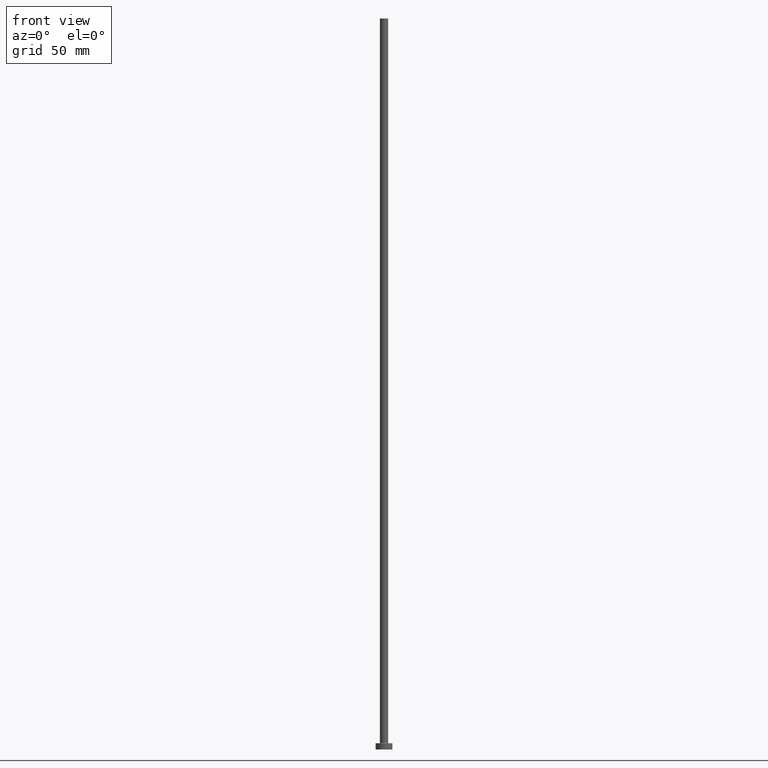
[diagram: clean part render]
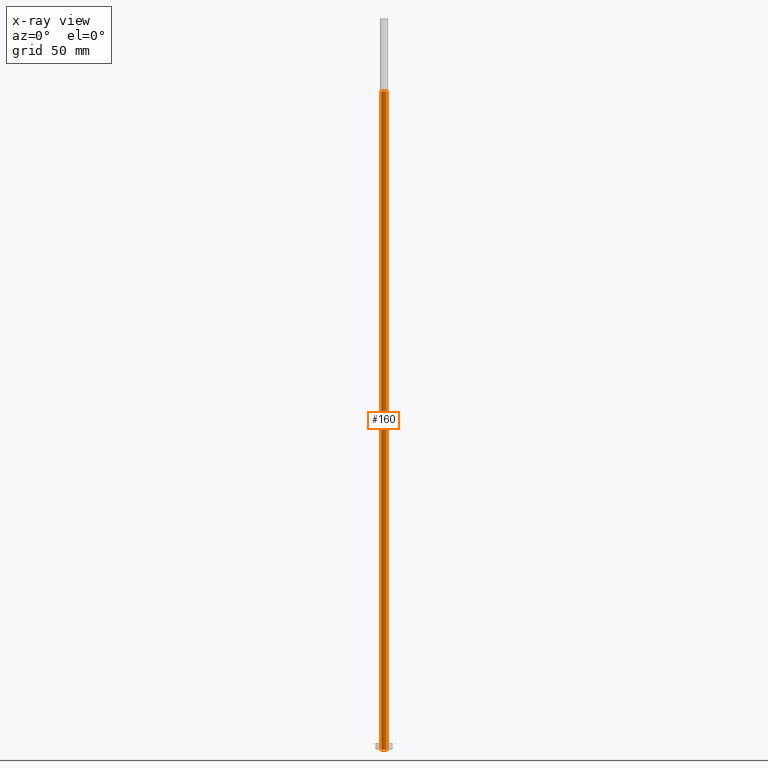
[diagram: x-ray — body ghosted, one internal face saturated and labeled with its STEP entity id]
A machine part, front view, then the same camera in x-ray: the body is ghosted and one INTERNAL B-rep face — a face not visible from any outside direction — is saturated and labeled: STEP entity #160.
In plain terms, the highlighted cylindrical surface (edge-blend (fillet) strip) has radius 1.25 mm, axis along (0, 0, -1).
Its self-contained STEP definition (entity closure, byte-faithful):
#1 = CARTESIAN_POINT ( 'NONE',  ( 1.250000000000000000, 1.530808498934191571E-16, 0.000000000000000000 ) ) ;
#7 = EDGE_LOOP ( 'NONE', ( #166, #453, #219, #256 ) ) ;
#27 = CARTESIAN_POINT ( 'NONE',  ( -1.250000000000000000, 0.000000000000000000, 318.5355339059327093 ) ) ;
#28 = CARTESIAN_POINT ( 'NONE',  ( 0.000000000000000000, 0.000000000000000000, 318.5355339059327093 ) ) ;
#30 = CARTESIAN_POINT ( 'NONE',  ( 0.000000000000000000, 0.000000000000000000, 0.000000000000000000 ) ) ;
#45 = CARTESIAN_POINT ( 'NONE',  ( 1.250000000000000000, 1.530808498934191571E-16, 314.9999999999999432 ) ) ;
#83 = VECTOR ( 'NONE', #132, 1000.000000000000000 ) ;
#127 = DIRECTION ( 'NONE',  ( 0.000000000000000000, 0.000000000000000000, -1.000000000000000000 ) ) ;
#132 = DIRECTION ( 'NONE',  ( 0.000000000000000000, 0.000000000000000000, -1.000000000000000000 ) ) ;
#142 = AXIS2_PLACEMENT_3D ( 'NONE', #30, #436, #283 ) ;
#147 = VECTOR ( 'NONE', #127, 1000.000000000000000 ) ;
#160 = ADVANCED_FACE ( 'NONE', ( #212 ), #241, .F. ) ;
#166 = ORIENTED_EDGE ( 'NONE', *, *, #167, .T. ) ;
#167 = EDGE_CURVE ( 'NONE', #328, #459, #362, .T. ) ;
#170 = CARTESIAN_POINT ( 'NONE',  ( 1.250000000000000000, 1.530808498934191571E-16, 318.5355339059327093 ) ) ;
#177 = EDGE_CURVE ( 'NONE', #459, #224, #422, .T. ) ;
#180 = DIRECTION ( 'NONE',  ( 0.000000000000000000, 0.000000000000000000, 1.000000000000000000 ) ) ;
#209 = CARTESIAN_POINT ( 'NONE',  ( 0.000000000000000000, 0.000000000000000000, 314.9999999999999432 ) ) ;
#212 = FACE_OUTER_BOUND ( 'NONE', #7, .T. ) ;
#219 = ORIENTED_EDGE ( 'NONE', *, *, #391, .T. ) ;
#224 = VERTEX_POINT ( 'NONE', #1 ) ;
#235 = DIRECTION ( 'NONE',  ( 1.000000000000000000, 0.000000000000000000, 0.000000000000000000 ) ) ;
#241 = CYLINDRICAL_SURFACE ( 'NONE', #284, 1.250000000000000000 ) ;
#250 = CIRCLE ( 'NONE', #142, 1.250000000000000000 ) ;
#256 = ORIENTED_EDGE ( 'NONE', *, *, #276, .F. ) ;
#268 = AXIS2_PLACEMENT_3D ( 'NONE', #209, #180, #235 ) ;
#274 = DIRECTION ( 'NONE',  ( 0.000000000000000000, 0.000000000000000000, -1.000000000000000000 ) ) ;
#276 = EDGE_CURVE ( 'NONE', #328, #361, #455, .T. ) ;
#283 = DIRECTION ( 'NONE',  ( 1.000000000000000000, 0.000000000000000000, 0.000000000000000000 ) ) ;
#284 = AXIS2_PLACEMENT_3D ( 'NONE', #28, #274, #380 ) ;
#318 = CARTESIAN_POINT ( 'NONE',  ( -1.250000000000000000, 0.000000000000000000, 314.9999999999999432 ) ) ;
#324 = CARTESIAN_POINT ( 'NONE',  ( -1.250000000000000000, 0.000000000000000000, 0.000000000000000000 ) ) ;
#328 = VERTEX_POINT ( 'NONE', #318 ) ;
#361 = VERTEX_POINT ( 'NONE', #324 ) ;
#362 = CIRCLE ( 'NONE', #268, 1.250000000000000000 ) ;
#380 = DIRECTION ( 'NONE',  ( -1.000000000000000000, 0.000000000000000000, 0.000000000000000000 ) ) ;
#391 = EDGE_CURVE ( 'NONE', #224, #361, #250, .T. ) ;
#422 = LINE ( 'NONE', #170, #147 ) ;
#436 = DIRECTION ( 'NONE',  ( -0.000000000000000000, -0.000000000000000000, -1.000000000000000000 ) ) ;
#453 = ORIENTED_EDGE ( 'NONE', *, *, #177, .T. ) ;
#455 = LINE ( 'NONE', #27, #83 ) ;
#459 = VERTEX_POINT ( 'NONE', #45 ) ;